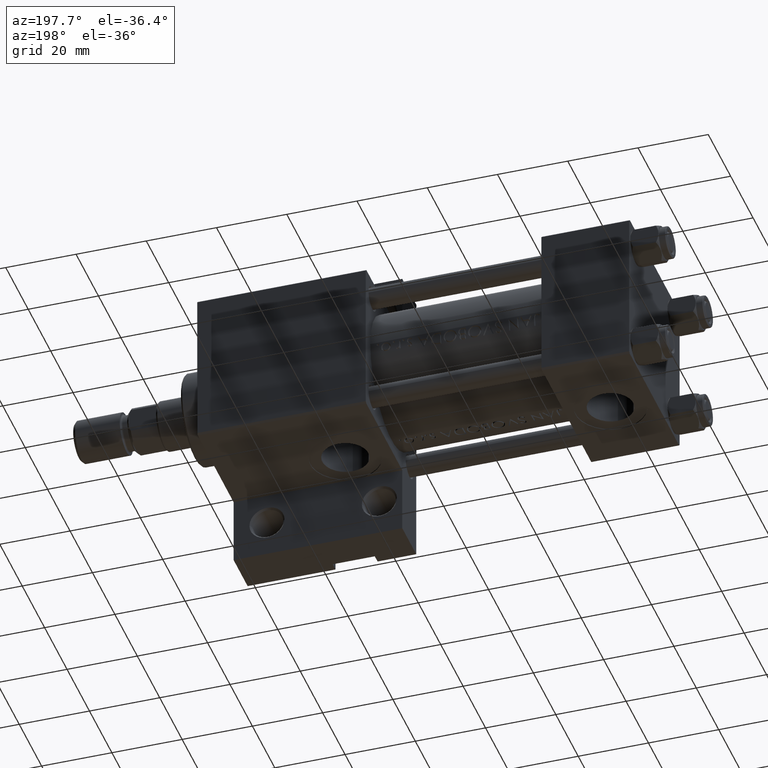
[diagram: clean part render]
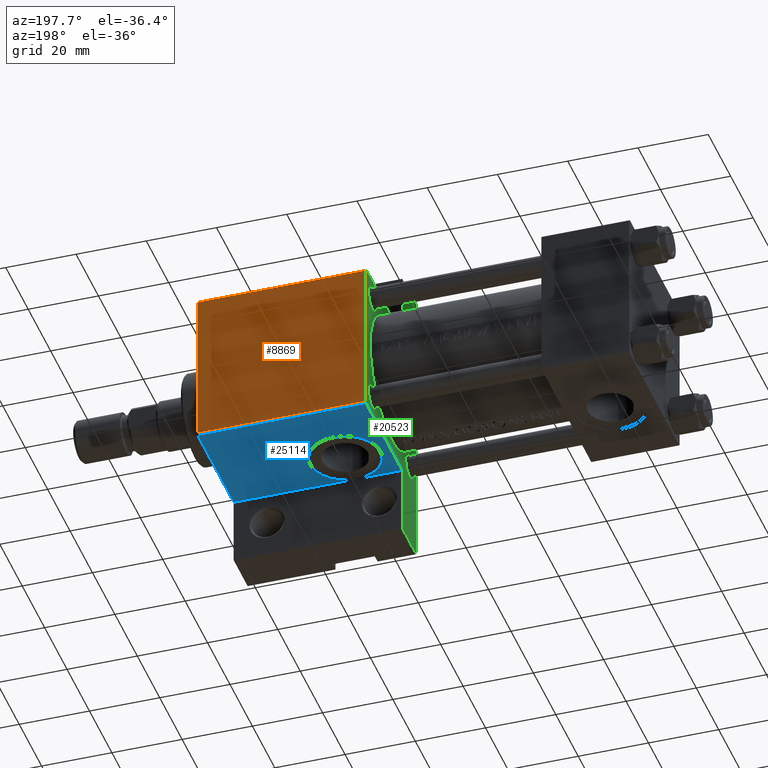
[diagram: same view with three faces highlighted in distinct colors, each labeled with its STEP entity id]
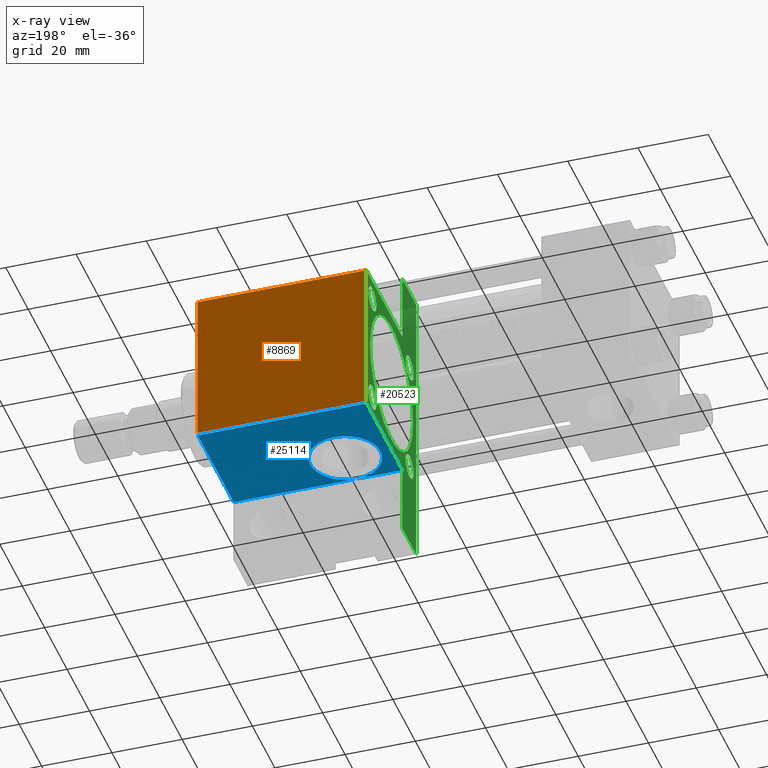
[diagram: x-ray of the same camera — body ghosted, the three highlighted faces saturated]
A machine part, auxiliary view with three faces highlighted in distinct colors.
The next image is the same camera in x-ray (body ghosted, the three faces saturated) — at least one of them is partly hidden behind the body in this view.
Their STEP definitions:

[orange] entity #8869 — the highlighted planar face has unit normal (0, -1, -0).
#1260 = VECTOR ( 'NONE', #13250, 1000.000000000000000 ) ;
#2361 = ORIENTED_EDGE ( 'NONE', *, *, #35281, .T. ) ;
#2670 = DIRECTION ( 'NONE',  ( 0.000000000000000000, 2.312964634635742957E-16, -1.000000000000000000 ) ) ;
#3049 = EDGE_CURVE ( 'NONE', #31546, #37523, #45025, .T. ) ;
#3474 = CARTESIAN_POINT ( 'NONE',  ( 75.00000000000001421, -21.99999999999996803, 22.49999999999999289 ) ) ;
#4268 = VECTOR ( 'NONE', #35802, 1000.000000000000000 ) ;
#5167 = VERTEX_POINT ( 'NONE', #3474 ) ;
#8869 = ADVANCED_FACE ( 'NONE', ( #13853 ), #36520, .F. ) ;
#9577 = VERTEX_POINT ( 'NONE', #28778 ) ;
#9980 = DIRECTION ( 'NONE',  ( 0.000000000000000000, 1.000000000000000000, 2.312964634635742957E-16 ) ) ;
#11059 = DIRECTION ( 'NONE',  ( 0.000000000000000000, -1.000000000000000000, -2.312964634635742957E-16 ) ) ;
#12078 = CARTESIAN_POINT ( 'NONE',  ( 75.00000000000001421, 21.99999999999998934, 22.50000000000000355 ) ) ;
#13250 = DIRECTION ( 'NONE',  ( 1.000000000000000000, 0.000000000000000000, 0.000000000000000000 ) ) ;
#13853 = FACE_OUTER_BOUND ( 'NONE', #35938, .T. ) ;
#18734 = ORIENTED_EDGE ( 'NONE', *, *, #3049, .T. ) ;
#21159 = EDGE_CURVE ( 'NONE', #37523, #5167, #44429, .T. ) ;
#22281 = CARTESIAN_POINT ( 'NONE',  ( 75.00000000000001421, 22.50000000000000355, 22.50000000000000355 ) ) ;
#25951 = VECTOR ( 'NONE', #27012, 1000.000000000000000 ) ;
#27012 = DIRECTION ( 'NONE',  ( -1.000000000000000000, 0.000000000000000000, 0.000000000000000000 ) ) ;
#28778 = CARTESIAN_POINT ( 'NONE',  ( 123.0000000000000142, -21.99999999999996803, 22.49999999999999289 ) ) ;
#31546 = VERTEX_POINT ( 'NONE', #39223 ) ;
#32262 = EDGE_CURVE ( 'NONE', #31546, #9577, #39238, .T. ) ;
#32718 = LINE ( 'NONE', #47111, #1260 ) ;
#34304 = CARTESIAN_POINT ( 'NONE',  ( 75.00000000000001421, 21.99999999999998934, 22.50000000000000355 ) ) ;
#34687 = ORIENTED_EDGE ( 'NONE', *, *, #21159, .T. ) ;
#35281 = EDGE_CURVE ( 'NONE', #5167, #9577, #32718, .T. ) ;
#35802 = DIRECTION ( 'NONE',  ( 0.000000000000000000, -1.000000000000000000, -2.312964634635742957E-16 ) ) ;
#35938 = EDGE_LOOP ( 'NONE', ( #37270, #18734, #34687, #2361 ) ) ;
#36520 = PLANE ( 'NONE',  #46020 ) ;
#37270 = ORIENTED_EDGE ( 'NONE', *, *, #32262, .F. ) ;
#37523 = VERTEX_POINT ( 'NONE', #12078 ) ;
#39223 = CARTESIAN_POINT ( 'NONE',  ( 123.0000000000000142, 21.99999999999998934, 22.50000000000000355 ) ) ;
#39238 = LINE ( 'NONE', #46512, #4268 ) ;
#42864 = CARTESIAN_POINT ( 'NONE',  ( 123.0000000000000142, 22.50000000000000355, 22.50000000000000355 ) ) ;
#44429 = LINE ( 'NONE', #22281, #47581 ) ;
#45025 = LINE ( 'NONE', #34304, #25951 ) ;
#46020 = AXIS2_PLACEMENT_3D ( 'NONE', #42864, #2670, #9980 ) ;
#46512 = CARTESIAN_POINT ( 'NONE',  ( 123.0000000000000142, 22.50000000000000355, 22.50000000000000355 ) ) ;
#47111 = CARTESIAN_POINT ( 'NONE',  ( 123.0000000000000142, -21.99999999999998224, 22.49999999999999289 ) ) ;
#47581 = VECTOR ( 'NONE', #11059, 1000.000000000000000 ) ;

[blue] entity #25114 — the highlighted planar face has unit normal (0, 0, -1).
#1985 = CARTESIAN_POINT ( 'NONE',  ( 75.00000000000001421, 22.50000000000000355, -9.999999999999984013 ) ) ;
#4245 = ORIENTED_EDGE ( 'NONE', *, *, #24518, .T. ) ;
#6111 = DIRECTION ( 'NONE',  ( 0.000000000000000000, 1.000000000000000000, 0.000000000000000000 ) ) ;
#6223 = CIRCLE ( 'NONE', #44354, 9.999999999999994671 ) ;
#8067 = EDGE_CURVE ( 'NONE', #11379, #30398, #42799, .T. ) ;
#8523 = DIRECTION ( 'NONE',  ( -1.000000000000000000, 1.445602896647340149E-16, -0.000000000000000000 ) ) ;
#8846 = VERTEX_POINT ( 'NONE', #12898 ) ;
#11379 = VERTEX_POINT ( 'NONE', #25942 ) ;
#12278 = CARTESIAN_POINT ( 'NONE',  ( 123.0000000000000142, 22.50000000000000355, 22.50000000000000355 ) ) ;
#12296 = ORIENTED_EDGE ( 'NONE', *, *, #8067, .T. ) ;
#12830 = DIRECTION ( 'NONE',  ( 0.000000000000000000, 1.000000000000000000, 0.000000000000000000 ) ) ;
#12898 = CARTESIAN_POINT ( 'NONE',  ( 88.00000000000001421, 22.50000000000000355, 9.999999999999994671 ) ) ;
#13125 = VECTOR ( 'NONE', #45658, 1000.000000000000000 ) ;
#13219 = ORIENTED_EDGE ( 'NONE', *, *, #22229, .F. ) ;
#13714 = EDGE_CURVE ( 'NONE', #30398, #27372, #19335, .T. ) ;
#14141 = VERTEX_POINT ( 'NONE', #1985 ) ;
#14162 = CIRCLE ( 'NONE', #15721, 9.999999999999994671 ) ;
#14397 = CARTESIAN_POINT ( 'NONE',  ( 123.0000000000000142, 22.50000000000000355, 22.50000000000000355 ) ) ;
#14630 = DIRECTION ( 'NONE',  ( -0.000000000000000000, 1.000000000000000000, 0.000000000000000000 ) ) ;
#15646 = VECTOR ( 'NONE', #44222, 1000.000000000000000 ) ;
#15721 = AXIS2_PLACEMENT_3D ( 'NONE', #46209, #12830, #27698 ) ;
#16752 = ORIENTED_EDGE ( 'NONE', *, *, #32113, .T. ) ;
#17132 = EDGE_CURVE ( 'NONE', #8846, #31679, #6223, .T. ) ;
#17660 = CARTESIAN_POINT ( 'NONE',  ( 88.00000000000001421, 22.49999999999999645, -9.999999999999998224 ) ) ;
#17671 = EDGE_CURVE ( 'NONE', #11379, #14141, #40878, .T. ) ;
#18414 = LINE ( 'NONE', #21370, #22703 ) ;
#19335 = LINE ( 'NONE', #12278, #13125 ) ;
#21370 = CARTESIAN_POINT ( 'NONE',  ( 75.00000000000001421, 22.50000000000000000, -9.999999999999998224 ) ) ;
#22229 = EDGE_CURVE ( 'NONE', #31679, #8846, #14162, .T. ) ;
#22703 = VECTOR ( 'NONE', #28438, 1000.000000000000000 ) ;
#24518 = EDGE_CURVE ( 'NONE', #31679, #14141, #18414, .T. ) ;
#25114 = ADVANCED_FACE ( 'NONE', ( #28073 ), #29502, .T. ) ;
#25868 = AXIS2_PLACEMENT_3D ( 'NONE', #14397, #14630, #44360 ) ;
#25942 = CARTESIAN_POINT ( 'NONE',  ( 75.00000000000001421, 22.50000000000000355, 21.99999999999998934 ) ) ;
#27372 = VERTEX_POINT ( 'NONE', #46210 ) ;
#27379 = CARTESIAN_POINT ( 'NONE',  ( 75.00000000000001421, 22.50000000000000355, 22.50000000000000355 ) ) ;
#27698 = DIRECTION ( 'NONE',  ( 0.000000000000000000, 0.000000000000000000, 1.000000000000000000 ) ) ;
#28073 = FACE_OUTER_BOUND ( 'NONE', #42520, .T. ) ;
#28075 = ORIENTED_EDGE ( 'NONE', *, *, #17132, .F. ) ;
#28438 = DIRECTION ( 'NONE',  ( -1.000000000000000000, 1.445602896647340149E-16, -0.000000000000000000 ) ) ;
#29127 = CARTESIAN_POINT ( 'NONE',  ( 123.0000000000000142, 22.50000000000000355, 21.99999999999998934 ) ) ;
#29502 = PLANE ( 'NONE',  #25868 ) ;
#30398 = VERTEX_POINT ( 'NONE', #33609 ) ;
#31168 = LINE ( 'NONE', #45784, #39311 ) ;
#31449 = DIRECTION ( 'NONE',  ( 0.000000000000000000, 0.000000000000000000, 1.000000000000000000 ) ) ;
#31679 = VERTEX_POINT ( 'NONE', #17660 ) ;
#32113 = EDGE_CURVE ( 'NONE', #27372, #31679, #31168, .T. ) ;
#33537 = DIRECTION ( 'NONE',  ( 0.000000000000000000, 0.000000000000000000, -1.000000000000000000 ) ) ;
#33609 = CARTESIAN_POINT ( 'NONE',  ( 123.0000000000000142, 22.50000000000000355, 21.99999999999998934 ) ) ;
#35052 = VECTOR ( 'NONE', #33537, 1000.000000000000000 ) ;
#36083 = ORIENTED_EDGE ( 'NONE', *, *, #17671, .F. ) ;
#39311 = VECTOR ( 'NONE', #8523, 1000.000000000000000 ) ;
#40878 = LINE ( 'NONE', #27379, #35052 ) ;
#41556 = ORIENTED_EDGE ( 'NONE', *, *, #13714, .T. ) ;
#42520 = EDGE_LOOP ( 'NONE', ( #36083, #12296, #41556, #16752, #28075, #13219, #4245 ) ) ;
#42799 = LINE ( 'NONE', #29127, #15646 ) ;
#43377 = CARTESIAN_POINT ( 'NONE',  ( 88.00000000000001421, 22.50000000000000355, 0.000000000000000000 ) ) ;
#44222 = DIRECTION ( 'NONE',  ( 1.000000000000000000, 0.000000000000000000, 0.000000000000000000 ) ) ;
#44354 = AXIS2_PLACEMENT_3D ( 'NONE', #43377, #6111, #31449 ) ;
#44360 = DIRECTION ( 'NONE',  ( 0.000000000000000000, -0.000000000000000000, 1.000000000000000000 ) ) ;
#45658 = DIRECTION ( 'NONE',  ( 0.000000000000000000, 0.000000000000000000, -1.000000000000000000 ) ) ;
#45784 = CARTESIAN_POINT ( 'NONE',  ( 75.00000000000001421, 22.50000000000000000, -9.999999999999998224 ) ) ;
#46209 = CARTESIAN_POINT ( 'NONE',  ( 88.00000000000001421, 22.50000000000000355, 0.000000000000000000 ) ) ;
#46210 = CARTESIAN_POINT ( 'NONE',  ( 122.9999999999999858, 22.49999999999999289, -9.999999999999998224 ) ) ;

[green] entity #20523 — the highlighted planar face has unit normal (-1, 0, -0).
#227 = CARTESIAN_POINT ( 'NONE',  ( 75.00000000000001421, -22.50000000000000000, -9.999999999999998224 ) ) ;
#868 = DIRECTION ( 'NONE',  ( 0.000000000000000000, 0.000000000000000000, 1.000000000000000000 ) ) ;
#980 = FACE_BOUND ( 'NONE', #5644, .T. ) ;
#1222 = CARTESIAN_POINT ( 'NONE',  ( 75.00000000000001421, 16.59999999999999787, -16.60000000000000497 ) ) ;
#1661 = DIRECTION ( 'NONE',  ( 0.000000000000000000, 0.000000000000000000, 1.000000000000000000 ) ) ;
#1698 = FACE_BOUND ( 'NONE', #41702, .T. ) ;
#1985 = CARTESIAN_POINT ( 'NONE',  ( 75.00000000000001421, 22.50000000000000355, -9.999999999999984013 ) ) ;
#2288 = DIRECTION ( 'NONE',  ( 0.000000000000000000, 0.000000000000000000, -1.000000000000000000 ) ) ;
#2791 = EDGE_CURVE ( 'NONE', #36355, #15256, #36830, .T. ) ;
#3074 = CARTESIAN_POINT ( 'NONE',  ( 75.00000000000001421, -22.24999999999998579, 22.24999999999998579 ) ) ;
#3365 = VECTOR ( 'NONE', #37580, 1000.000000000000000 ) ;
#3382 = DIRECTION ( 'NONE',  ( 0.000000000000000000, 0.000000000000000000, 1.000000000000000000 ) ) ;
#3474 = CARTESIAN_POINT ( 'NONE',  ( 75.00000000000001421, -21.99999999999996803, 22.49999999999999289 ) ) ;
#3658 = CARTESIAN_POINT ( 'NONE',  ( 75.00000000000001421, -22.49999999999999645, 22.49999999999999289 ) ) ;
#3881 = EDGE_CURVE ( 'NONE', #23593, #17291, #41942, .T. ) ;
#4161 = VERTEX_POINT ( 'NONE', #12089 ) ;
#4644 = DIRECTION ( 'NONE',  ( 1.000000000000000000, -0.000000000000000000, 0.000000000000000000 ) ) ;
#5146 = EDGE_LOOP ( 'NONE', ( #44232, #41466 ) ) ;
#5167 = VERTEX_POINT ( 'NONE', #3474 ) ;
#5361 = DIRECTION ( 'NONE',  ( -1.000000000000000000, 0.000000000000000000, -0.000000000000000000 ) ) ;
#5644 = EDGE_LOOP ( 'NONE', ( #26814, #24072 ) ) ;
#5682 = CIRCLE ( 'NONE', #7998, 3.500000000000003109 ) ;
#6143 = EDGE_CURVE ( 'NONE', #19086, #17291, #26305, .T. ) ;
#6204 = CARTESIAN_POINT ( 'NONE',  ( 75.00000000000001421, -16.59999999999999076, -13.10000000000000142 ) ) ;
#6402 = ORIENTED_EDGE ( 'NONE', *, *, #21684, .T. ) ;
#6773 = CARTESIAN_POINT ( 'NONE',  ( 75.00000000000001421, 16.59999999999999787, 16.60000000000000497 ) ) ;
#6777 = CARTESIAN_POINT ( 'NONE',  ( 75.00000000000001421, 42.00000000000000711, -22.50000000000000000 ) ) ;
#7020 = LINE ( 'NONE', #18233, #31243 ) ;
#7196 = LINE ( 'NONE', #3074, #43719 ) ;
#7424 = VECTOR ( 'NONE', #46650, 1000.000000000000000 ) ;
#7885 = AXIS2_PLACEMENT_3D ( 'NONE', #13140, #5361, #24361 ) ;
#7998 = AXIS2_PLACEMENT_3D ( 'NONE', #39206, #35050, #1661 ) ;
#8294 = CARTESIAN_POINT ( 'NONE',  ( 75.00000000000001421, 16.59999999999999787, 20.10000000000000853 ) ) ;
#8337 = EDGE_CURVE ( 'NONE', #39777, #4161, #30471, .T. ) ;
#8398 = EDGE_LOOP ( 'NONE', ( #40048, #21115, #39613, #6402, #27840, #19031, #40018, #24367, #41871, #41206 ) ) ;
#8472 = AXIS2_PLACEMENT_3D ( 'NONE', #33569, #37009, #18942 ) ;
#8926 = EDGE_CURVE ( 'NONE', #39376, #44132, #24838, .T. ) ;
#9042 = EDGE_CURVE ( 'NONE', #15848, #39376, #7020, .T. ) ;
#9248 = CARTESIAN_POINT ( 'NONE',  ( 75.00000000000001421, 16.59999999999999787, -13.09999999999999787 ) ) ;
#9272 = CARTESIAN_POINT ( 'NONE',  ( 75.00000000000001421, 16.59999999999999787, 16.60000000000000497 ) ) ;
#9314 = CIRCLE ( 'NONE', #21761, 3.500000000000006661 ) ;
#9681 = ORIENTED_EDGE ( 'NONE', *, *, #8337, .T. ) ;
#9783 = ORIENTED_EDGE ( 'NONE', *, *, #14771, .T. ) ;
#11059 = DIRECTION ( 'NONE',  ( 0.000000000000000000, -1.000000000000000000, -2.312964634635742957E-16 ) ) ;
#11379 = VERTEX_POINT ( 'NONE', #25942 ) ;
#11542 = CARTESIAN_POINT ( 'NONE',  ( 75.00000000000001421, -16.59999999999999076, -16.60000000000000853 ) ) ;
#11642 = VERTEX_POINT ( 'NONE', #15132 ) ;
#11920 = EDGE_LOOP ( 'NONE', ( #30463, #29128 ) ) ;
#12078 = CARTESIAN_POINT ( 'NONE',  ( 75.00000000000001421, 21.99999999999998934, 22.50000000000000355 ) ) ;
#12089 = CARTESIAN_POINT ( 'NONE',  ( 75.00000000000001421, 6.123233995736727825E-17, 18.50000000000000355 ) ) ;
#12364 = VERTEX_POINT ( 'NONE', #13183 ) ;
#13008 = CARTESIAN_POINT ( 'NONE',  ( 75.00000000000001421, 6.123233995736727825E-17, -0.4999999999999970024 ) ) ;
#13140 = CARTESIAN_POINT ( 'NONE',  ( 75.00000000000001421, 0.000000000000000000, 0.000000000000000000 ) ) ;
#13183 = CARTESIAN_POINT ( 'NONE',  ( 75.00000000000001421, 16.59999999999999787, -20.10000000000000853 ) ) ;
#13691 = ORIENTED_EDGE ( 'NONE', *, *, #34028, .T. ) ;
#14073 = DIRECTION ( 'NONE',  ( 1.000000000000000000, -0.000000000000000000, 0.000000000000000000 ) ) ;
#14141 = VERTEX_POINT ( 'NONE', #1985 ) ;
#14771 = EDGE_CURVE ( 'NONE', #4161, #39777, #36515, .T. ) ;
#15132 = CARTESIAN_POINT ( 'NONE',  ( 75.00000000000001421, -16.59999999999999076, 13.10000000000000142 ) ) ;
#15256 = VERTEX_POINT ( 'NONE', #8294 ) ;
#15670 = AXIS2_PLACEMENT_3D ( 'NONE', #13008, #20818, #2288 ) ;
#15848 = VERTEX_POINT ( 'NONE', #27844 ) ;
#16300 = FACE_OUTER_BOUND ( 'NONE', #8398, .T. ) ;
#16324 = EDGE_CURVE ( 'NONE', #12364, #19680, #48182, .T. ) ;
#16434 = EDGE_CURVE ( 'NONE', #41747, #23952, #9314, .T. ) ;
#16441 = CARTESIAN_POINT ( 'NONE',  ( 75.00000000000001421, 16.59999999999999787, -16.60000000000000497 ) ) ;
#17291 = VERTEX_POINT ( 'NONE', #227 ) ;
#17671 = EDGE_CURVE ( 'NONE', #11379, #14141, #40878, .T. ) ;
#18011 = DIRECTION ( 'NONE',  ( 0.000000000000000000, 0.000000000000000000, -1.000000000000000000 ) ) ;
#18233 = CARTESIAN_POINT ( 'NONE',  ( 75.00000000000001421, 42.00000000000000711, -9.999999999999998224 ) ) ;
#18942 = DIRECTION ( 'NONE',  ( 0.000000000000000000, 0.000000000000000000, -1.000000000000000000 ) ) ;
#19031 = ORIENTED_EDGE ( 'NONE', *, *, #8926, .T. ) ;
#19046 = EDGE_CURVE ( 'NONE', #11642, #23706, #35891, .T. ) ;
#19086 = VERTEX_POINT ( 'NONE', #23501 ) ;
#19214 = CARTESIAN_POINT ( 'NONE',  ( 75.00000000000001421, 22.24999999999999645, 22.24999999999999645 ) ) ;
#19680 = VERTEX_POINT ( 'NONE', #9248 ) ;
#20253 = LINE ( 'NONE', #35122, #39858 ) ;
#20326 = DIRECTION ( 'NONE',  ( 0.000000000000000000, 0.000000000000000000, 1.000000000000000000 ) ) ;
#20523 = ADVANCED_FACE ( 'NONE', ( #34352, #35087, #980, #1698, #38988, #16300 ), #27773, .T. ) ;
#20690 = CIRCLE ( 'NONE', #39383, 3.500000000000006661 ) ;
#20818 = DIRECTION ( 'NONE',  ( 1.000000000000000000, 0.000000000000000000, 0.000000000000000000 ) ) ;
#21115 = ORIENTED_EDGE ( 'NONE', *, *, #21865, .T. ) ;
#21159 = EDGE_CURVE ( 'NONE', #37523, #5167, #44429, .T. ) ;
#21363 = DIRECTION ( 'NONE',  ( -0.000000000000000000, 0.7071067811865474617, 0.7071067811865474617 ) ) ;
#21684 = EDGE_CURVE ( 'NONE', #14141, #15848, #20253, .T. ) ;
#21761 = AXIS2_PLACEMENT_3D ( 'NONE', #43726, #25221, #28399 ) ;
#21865 = EDGE_CURVE ( 'NONE', #37523, #11379, #44823, .T. ) ;
#22018 = CARTESIAN_POINT ( 'NONE',  ( 75.00000000000001421, -16.59999999999999076, 20.10000000000001208 ) ) ;
#22281 = CARTESIAN_POINT ( 'NONE',  ( 75.00000000000001421, 22.50000000000000355, 22.50000000000000355 ) ) ;
#22581 = CIRCLE ( 'NONE', #36595, 3.499999999999999556 ) ;
#23038 = CARTESIAN_POINT ( 'NONE',  ( 75.00000000000000000, -42.00000000000000711, -9.999999999999998224 ) ) ;
#23501 = CARTESIAN_POINT ( 'NONE',  ( 75.00000000000001421, -22.49999999999999645, 21.99999999999997868 ) ) ;
#23593 = VERTEX_POINT ( 'NONE', #23038 ) ;
#23706 = VERTEX_POINT ( 'NONE', #22018 ) ;
#23952 = VERTEX_POINT ( 'NONE', #39533 ) ;
#24072 = ORIENTED_EDGE ( 'NONE', *, *, #16324, .T. ) ;
#24216 = DIRECTION ( 'NONE',  ( 1.000000000000000000, -0.000000000000000000, 0.000000000000000000 ) ) ;
#24361 = DIRECTION ( 'NONE',  ( -0.000000000000000000, 0.000000000000000000, 1.000000000000000000 ) ) ;
#24367 = ORIENTED_EDGE ( 'NONE', *, *, #3881, .T. ) ;
#24399 = DIRECTION ( 'NONE',  ( -0.000000000000000000, 1.000000000000000000, -0.000000000000000000 ) ) ;
#24783 = EDGE_LOOP ( 'NONE', ( #9783, #9681 ) ) ;
#24838 = LINE ( 'NONE', #43355, #26594 ) ;
#25221 = DIRECTION ( 'NONE',  ( 1.000000000000000000, -0.000000000000000000, 0.000000000000000000 ) ) ;
#25319 = DIRECTION ( 'NONE',  ( 0.000000000000000000, -1.000000000000000000, -7.709882115452476934E-17 ) ) ;
#25942 = CARTESIAN_POINT ( 'NONE',  ( 75.00000000000001421, 22.50000000000000355, 21.99999999999998934 ) ) ;
#26305 = LINE ( 'NONE', #3658, #28425 ) ;
#26594 = VECTOR ( 'NONE', #25319, 1000.000000000000000 ) ;
#26814 = ORIENTED_EDGE ( 'NONE', *, *, #42529, .T. ) ;
#27293 = AXIS2_PLACEMENT_3D ( 'NONE', #46151, #24216, #20326 ) ;
#27379 = CARTESIAN_POINT ( 'NONE',  ( 75.00000000000001421, 22.50000000000000355, 22.50000000000000355 ) ) ;
#27773 = PLANE ( 'NONE',  #7885 ) ;
#27840 = ORIENTED_EDGE ( 'NONE', *, *, #9042, .T. ) ;
#27844 = CARTESIAN_POINT ( 'NONE',  ( 75.00000000000001421, 42.00000000000000711, -9.999999999999998224 ) ) ;
#28201 = VECTOR ( 'NONE', #33374, 1000.000000000000114 ) ;
#28399 = DIRECTION ( 'NONE',  ( 0.000000000000000000, 0.000000000000000000, 1.000000000000000000 ) ) ;
#28425 = VECTOR ( 'NONE', #18011, 1000.000000000000000 ) ;
#28818 = AXIS2_PLACEMENT_3D ( 'NONE', #1222, #4644, #30449 ) ;
#29128 = ORIENTED_EDGE ( 'NONE', *, *, #2791, .T. ) ;
#29509 = AXIS2_PLACEMENT_3D ( 'NONE', #16441, #46184, #868 ) ;
#29821 = DIRECTION ( 'NONE',  ( 1.000000000000000000, -0.000000000000000000, 0.000000000000000000 ) ) ;
#29829 = AXIS2_PLACEMENT_3D ( 'NONE', #9272, #36068, #32394 ) ;
#30449 = DIRECTION ( 'NONE',  ( 0.000000000000000000, 0.000000000000000000, 1.000000000000000000 ) ) ;
#30463 = ORIENTED_EDGE ( 'NONE', *, *, #40584, .T. ) ;
#30471 = CIRCLE ( 'NONE', #15670, 19.00000000000000000 ) ;
#31243 = VECTOR ( 'NONE', #44066, 1000.000000000000000 ) ;
#31314 = LINE ( 'NONE', #43258, #7424 ) ;
#32394 = DIRECTION ( 'NONE',  ( 0.000000000000000000, 0.000000000000000000, 1.000000000000000000 ) ) ;
#33374 = DIRECTION ( 'NONE',  ( 0.000000000000000000, 0.7071067811865474617, -0.7071067811865474617 ) ) ;
#33537 = DIRECTION ( 'NONE',  ( 0.000000000000000000, 0.000000000000000000, -1.000000000000000000 ) ) ;
#33569 = CARTESIAN_POINT ( 'NONE',  ( 75.00000000000001421, 6.123233995736727825E-17, -0.4999999999999970024 ) ) ;
#33952 = EDGE_CURVE ( 'NONE', #23593, #44132, #31314, .T. ) ;
#34028 = EDGE_CURVE ( 'NONE', #23952, #41747, #20690, .T. ) ;
#34352 = FACE_BOUND ( 'NONE', #5146, .T. ) ;
#34380 = CARTESIAN_POINT ( 'NONE',  ( 75.00000000000000000, -42.00000000000000711, -9.999999999999998224 ) ) ;
#34959 = CARTESIAN_POINT ( 'NONE',  ( 75.00000000000001421, 2.388061258337338150E-15, -19.49999999999999645 ) ) ;
#35050 = DIRECTION ( 'NONE',  ( 1.000000000000000000, -0.000000000000000000, 0.000000000000000000 ) ) ;
#35052 = VECTOR ( 'NONE', #33537, 1000.000000000000000 ) ;
#35087 = FACE_BOUND ( 'NONE', #11920, .T. ) ;
#35122 = CARTESIAN_POINT ( 'NONE',  ( 75.00000000000001421, 42.00000000000000711, -9.999999999999998224 ) ) ;
#35891 = CIRCLE ( 'NONE', #27293, 3.500000000000003109 ) ;
#36068 = DIRECTION ( 'NONE',  ( 1.000000000000000000, -0.000000000000000000, 0.000000000000000000 ) ) ;
#36355 = VERTEX_POINT ( 'NONE', #44184 ) ;
#36515 = CIRCLE ( 'NONE', #8472, 19.00000000000000000 ) ;
#36595 = AXIS2_PLACEMENT_3D ( 'NONE', #6773, #14073, #3382 ) ;
#36830 = CIRCLE ( 'NONE', #29829, 3.499999999999999556 ) ;
#37009 = DIRECTION ( 'NONE',  ( 1.000000000000000000, 0.000000000000000000, 0.000000000000000000 ) ) ;
#37386 = DIRECTION ( 'NONE',  ( 0.000000000000000000, 0.000000000000000000, 1.000000000000000000 ) ) ;
#37523 = VERTEX_POINT ( 'NONE', #12078 ) ;
#37580 = DIRECTION ( 'NONE',  ( 7.116814260417666541E-16, 1.000000000000000000, 0.000000000000000000 ) ) ;
#38988 = FACE_BOUND ( 'NONE', #24783, .T. ) ;
#39206 = CARTESIAN_POINT ( 'NONE',  ( 75.00000000000001421, -16.59999999999999076, 16.60000000000000853 ) ) ;
#39376 = VERTEX_POINT ( 'NONE', #6777 ) ;
#39383 = AXIS2_PLACEMENT_3D ( 'NONE', #11542, #29821, #37386 ) ;
#39533 = CARTESIAN_POINT ( 'NONE',  ( 75.00000000000001421, -16.59999999999999076, -20.10000000000001208 ) ) ;
#39613 = ORIENTED_EDGE ( 'NONE', *, *, #17671, .T. ) ;
#39777 = VERTEX_POINT ( 'NONE', #34959 ) ;
#39858 = VECTOR ( 'NONE', #24399, 1000.000000000000000 ) ;
#39866 = CARTESIAN_POINT ( 'NONE',  ( 75.00000000000000000, -42.00000000000000711, -22.50000000000000000 ) ) ;
#40018 = ORIENTED_EDGE ( 'NONE', *, *, #33952, .F. ) ;
#40048 = ORIENTED_EDGE ( 'NONE', *, *, #21159, .F. ) ;
#40584 = EDGE_CURVE ( 'NONE', #15256, #36355, #22581, .T. ) ;
#40707 = ORIENTED_EDGE ( 'NONE', *, *, #16434, .T. ) ;
#40878 = LINE ( 'NONE', #27379, #35052 ) ;
#41206 = ORIENTED_EDGE ( 'NONE', *, *, #44944, .T. ) ;
#41466 = ORIENTED_EDGE ( 'NONE', *, *, #19046, .T. ) ;
#41702 = EDGE_LOOP ( 'NONE', ( #40707, #13691 ) ) ;
#41747 = VERTEX_POINT ( 'NONE', #6204 ) ;
#41871 = ORIENTED_EDGE ( 'NONE', *, *, #6143, .F. ) ;
#41942 = LINE ( 'NONE', #34380, #3365 ) ;
#42529 = EDGE_CURVE ( 'NONE', #19680, #12364, #42847, .T. ) ;
#42847 = CIRCLE ( 'NONE', #28818, 3.500000000000006661 ) ;
#43258 = CARTESIAN_POINT ( 'NONE',  ( 75.00000000000000000, -42.00000000000000711, -9.999999999999998224 ) ) ;
#43355 = CARTESIAN_POINT ( 'NONE',  ( 75.00000000000001421, 22.50000000000000355, -22.49999999999999645 ) ) ;
#43719 = VECTOR ( 'NONE', #21363, 1000.000000000000114 ) ;
#43726 = CARTESIAN_POINT ( 'NONE',  ( 75.00000000000001421, -16.59999999999999076, -16.60000000000000853 ) ) ;
#44066 = DIRECTION ( 'NONE',  ( 0.000000000000000000, 0.000000000000000000, -1.000000000000000000 ) ) ;
#44132 = VERTEX_POINT ( 'NONE', #39866 ) ;
#44184 = CARTESIAN_POINT ( 'NONE',  ( 75.00000000000001421, 16.59999999999999787, 13.10000000000000142 ) ) ;
#44232 = ORIENTED_EDGE ( 'NONE', *, *, #47894, .T. ) ;
#44429 = LINE ( 'NONE', #22281, #47581 ) ;
#44823 = LINE ( 'NONE', #19214, #28201 ) ;
#44944 = EDGE_CURVE ( 'NONE', #19086, #5167, #7196, .T. ) ;
#46151 = CARTESIAN_POINT ( 'NONE',  ( 75.00000000000001421, -16.59999999999999076, 16.60000000000000853 ) ) ;
#46184 = DIRECTION ( 'NONE',  ( 1.000000000000000000, -0.000000000000000000, 0.000000000000000000 ) ) ;
#46650 = DIRECTION ( 'NONE',  ( 0.000000000000000000, 0.000000000000000000, -1.000000000000000000 ) ) ;
#47581 = VECTOR ( 'NONE', #11059, 1000.000000000000000 ) ;
#47894 = EDGE_CURVE ( 'NONE', #23706, #11642, #5682, .T. ) ;
#48182 = CIRCLE ( 'NONE', #29509, 3.500000000000006661 ) ;